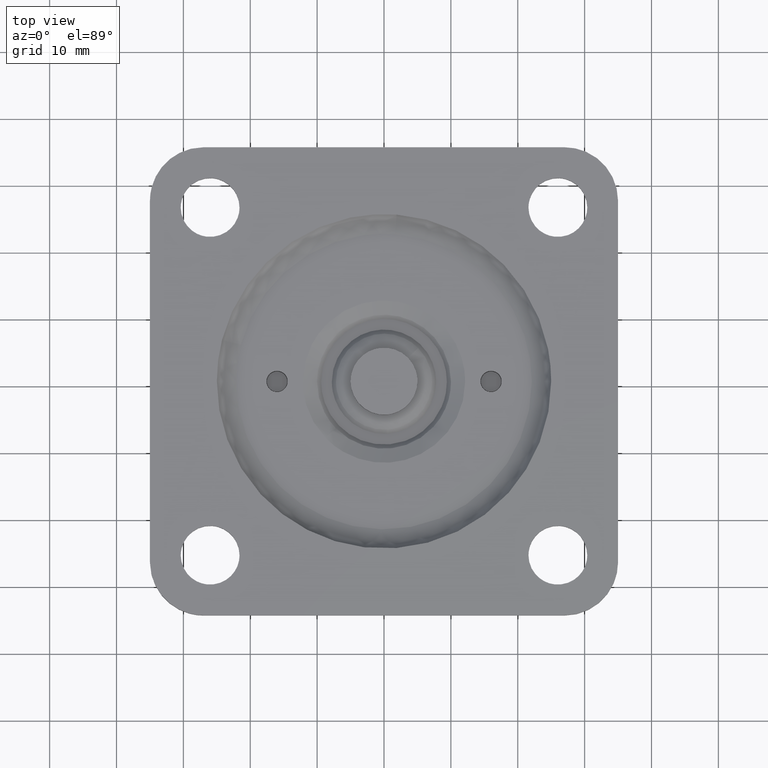
[diagram: clean part render]
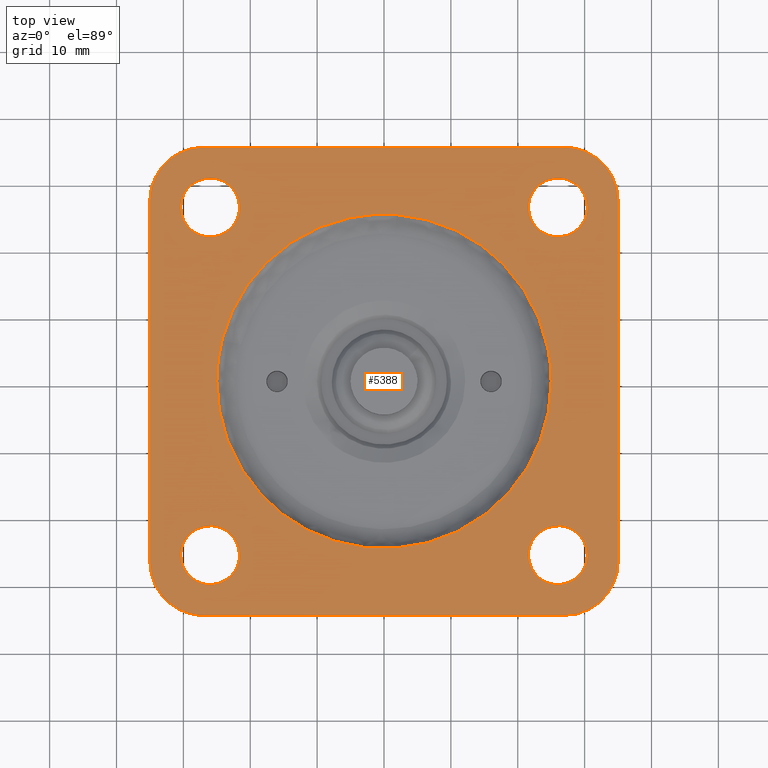
[diagram: same view with one face highlighted and labeled with its STEP entity id]
A machine part, top view. The second image highlights one B-rep face of the part: STEP entity #5388.
In plain terms, the highlighted face is a freeform B-spline surface patch.
Its self-contained STEP definition (entity closure, byte-faithful):
#2862=CARTESIAN_POINT('',(-26.519352632621381,21.630758084015529,30.500000000000000));
#2863=VERTEX_POINT('',#2862);
#2869=CARTESIAN_POINT('',(-21.600001999999900,26.0,30.500000000000000));
#2870=VERTEX_POINT('',#2869);
#2871=CARTESIAN_POINT('',(-26.519352632621377,21.630758084015525,30.500000000000000));
#2872=CARTESIAN_POINT('',(-26.260588126601434,21.599999999999994,30.500000000000000));
#2873=CARTESIAN_POINT('',(-26.000001999999899,21.600000000000001,30.500000000000000));
#2874=CARTESIAN_POINT('',(-21.600001999999900,21.600000000000005,30.499999999999996));
#2875=CARTESIAN_POINT('',(-21.600001999999900,26.0,30.500000000000000));
#2883=(BOUNDED_CURVE()B_SPLINE_CURVE(2,(#2871,#2872,#2873,#2874,#2875),.UNSPECIFIED.,.F.,.U.)B_SPLINE_CURVE_WITH_KNOTS((3,2,3),(0.229562473505453,0.250000000000000,0.500000000000000),.UNSPECIFIED.)CURVE()GEOMETRIC_REPRESENTATION_ITEM()RATIONAL_B_SPLINE_CURVE((0.956026754167910,0.976055948321707,1.0,0.707106781186548,1.0))REPRESENTATION_ITEM(''));
#2884=EDGE_CURVE('',#2863,#2870,#2883,.T.);
#2886=CARTESIAN_POINT('',(-25.731392826638849,30.391793382203549,30.500000000000000));
#2887=VERTEX_POINT('',#2886);
#2888=CARTESIAN_POINT('',(-21.600001999999900,26.0,30.500000000000000));
#2889=CARTESIAN_POINT('',(-21.600001999999900,30.139110849536575,30.500000000000004));
#2890=CARTESIAN_POINT('',(-25.731392826638846,30.391793382203542,30.500000000000000));
#2898=(BOUNDED_CURVE()B_SPLINE_CURVE(2,(#2888,#2889,#2890),.UNSPECIFIED.,.F.,.U.)B_SPLINE_CURVE_WITH_KNOTS((3,3),(0.500000000000000,0.739333135134488),.UNSPECIFIED.)CURVE()GEOMETRIC_REPRESENTATION_ITEM()RATIONAL_B_SPLINE_CURVE((1.0,0.719603790726980,0.976072412215062))REPRESENTATION_ITEM(''));
#2899=EDGE_CURVE('',#2870,#2887,#2898,.T.);
#2973=CARTESIAN_POINT('',(-30.400001999999901,26.0,30.500000000000000));
#2974=VERTEX_POINT('',#2973);
#2975=CARTESIAN_POINT('',(-25.731392826638849,30.391793382203545,30.500000000000004));
#2976=CARTESIAN_POINT('',(-25.865572047951510,30.399999999999991,30.499999999999996));
#2977=CARTESIAN_POINT('',(-26.000001999999899,30.399999999999999,30.500000000000000));
#2978=CARTESIAN_POINT('',(-30.400001999999905,30.400000000000002,30.499999999999996));
#2979=CARTESIAN_POINT('',(-30.400001999999901,26.0,30.500000000000000));
#2987=(BOUNDED_CURVE()B_SPLINE_CURVE(2,(#2975,#2976,#2977,#2978,#2979),.UNSPECIFIED.,.F.,.U.)B_SPLINE_CURVE_WITH_KNOTS((3,2,3),(0.739333135134488,0.750000000000000,1.0),.UNSPECIFIED.)CURVE()GEOMETRIC_REPRESENTATION_ITEM()RATIONAL_B_SPLINE_CURVE((0.976072412215062,0.987502990459568,1.0,0.707106781186548,1.0))REPRESENTATION_ITEM(''));
#2988=EDGE_CURVE('',#2887,#2974,#2987,.T.);
#2990=CARTESIAN_POINT('',(-30.400001999999901,26.0,30.500000000000000));
#2991=CARTESIAN_POINT('',(-30.400001999999898,22.092032086051312,30.499999999999996));
#2992=CARTESIAN_POINT('',(-26.519352632621381,21.630758084015529,30.500000000000004));
#3000=(BOUNDED_CURVE()B_SPLINE_CURVE(2,(#2990,#2991,#2992),.UNSPECIFIED.,.F.,.U.)B_SPLINE_CURVE_WITH_KNOTS((3,3),(0.0,0.229562473505453),.UNSPECIFIED.)CURVE()GEOMETRIC_REPRESENTATION_ITEM()RATIONAL_B_SPLINE_CURVE((1.0,0.731050832864840,0.956026754167910))REPRESENTATION_ITEM(''));
#3001=EDGE_CURVE('',#2974,#2863,#3000,.T.);
#3048=CARTESIAN_POINT('',(25.480647367378520,21.630758084015529,30.500000000000000));
#3049=VERTEX_POINT('',#3048);
#3055=CARTESIAN_POINT('',(30.399998000000000,26.0,30.500000000000000));
#3056=VERTEX_POINT('',#3055);
#3057=CARTESIAN_POINT('',(25.480647367378520,21.630758084015529,30.500000000000004));
#3058=CARTESIAN_POINT('',(25.739411873398456,21.599999999999994,30.500000000000004));
#3059=CARTESIAN_POINT('',(25.999998000000001,21.600000000000001,30.500000000000000));
#3060=CARTESIAN_POINT('',(30.399997999999997,21.600000000000005,30.499999999999996));
#3061=CARTESIAN_POINT('',(30.399998000000000,26.0,30.500000000000000));
#3069=(BOUNDED_CURVE()B_SPLINE_CURVE(2,(#3057,#3058,#3059,#3060,#3061),.UNSPECIFIED.,.F.,.U.)B_SPLINE_CURVE_WITH_KNOTS((3,2,3),(0.229562473505453,0.250000000000000,0.500000000000000),.UNSPECIFIED.)CURVE()GEOMETRIC_REPRESENTATION_ITEM()RATIONAL_B_SPLINE_CURVE((0.956026754167910,0.976055948321707,1.0,0.707106781186548,1.0))REPRESENTATION_ITEM(''));
#3070=EDGE_CURVE('',#3049,#3056,#3069,.T.);
#3072=CARTESIAN_POINT('',(26.268607173361062,30.391793382203549,30.500000000000000));
#3073=VERTEX_POINT('',#3072);
#3074=CARTESIAN_POINT('',(30.399998000000000,26.0,30.500000000000000));
#3075=CARTESIAN_POINT('',(30.399998000000000,30.139110849536575,30.500000000000004));
#3076=CARTESIAN_POINT('',(26.268607173361058,30.391793382203542,30.500000000000000));
#3084=(BOUNDED_CURVE()B_SPLINE_CURVE(2,(#3074,#3075,#3076),.UNSPECIFIED.,.F.,.U.)B_SPLINE_CURVE_WITH_KNOTS((3,3),(0.500000000000000,0.739333135134488),.UNSPECIFIED.)CURVE()GEOMETRIC_REPRESENTATION_ITEM()RATIONAL_B_SPLINE_CURVE((1.0,0.719603790726980,0.976072412215062))REPRESENTATION_ITEM(''));
#3085=EDGE_CURVE('',#3056,#3073,#3084,.T.);
#3159=CARTESIAN_POINT('',(21.599997999999999,26.0,30.500000000000000));
#3160=VERTEX_POINT('',#3159);
#3161=CARTESIAN_POINT('',(26.268607173361058,30.391793382203542,30.500000000000000));
#3162=CARTESIAN_POINT('',(26.134427952048384,30.400000000000006,30.500000000000007));
#3163=CARTESIAN_POINT('',(25.999998000000001,30.399999999999999,30.500000000000000));
#3164=CARTESIAN_POINT('',(21.599997999999992,30.400000000000002,30.499999999999996));
#3165=CARTESIAN_POINT('',(21.599997999999999,26.0,30.500000000000000));
#3173=(BOUNDED_CURVE()B_SPLINE_CURVE(2,(#3161,#3162,#3163,#3164,#3165),.UNSPECIFIED.,.F.,.U.)B_SPLINE_CURVE_WITH_KNOTS((3,2,3),(0.739333135134488,0.750000000000000,1.0),.UNSPECIFIED.)CURVE()GEOMETRIC_REPRESENTATION_ITEM()RATIONAL_B_SPLINE_CURVE((0.976072412215062,0.987502990459568,1.0,0.707106781186548,1.0))REPRESENTATION_ITEM(''));
#3174=EDGE_CURVE('',#3073,#3160,#3173,.T.);
#3176=CARTESIAN_POINT('',(21.599997999999999,26.0,30.500000000000000));
#3177=CARTESIAN_POINT('',(21.599997999999999,22.092032086051308,30.500000000000004));
#3178=CARTESIAN_POINT('',(25.480647367378523,21.630758084015522,30.500000000000004));
#3186=(BOUNDED_CURVE()B_SPLINE_CURVE(2,(#3176,#3177,#3178),.UNSPECIFIED.,.F.,.U.)B_SPLINE_CURVE_WITH_KNOTS((3,3),(0.0,0.229562473505453),.UNSPECIFIED.)CURVE()GEOMETRIC_REPRESENTATION_ITEM()RATIONAL_B_SPLINE_CURVE((1.0,0.731050832864841,0.956026754167910))REPRESENTATION_ITEM(''));
#3187=EDGE_CURVE('',#3160,#3049,#3186,.T.);
#3234=CARTESIAN_POINT('',(25.480647367378520,-30.369241915984471,30.500000000000000));
#3235=VERTEX_POINT('',#3234);
#3241=CARTESIAN_POINT('',(30.399998000000000,-26.0,30.500000000000000));
#3242=VERTEX_POINT('',#3241);
#3243=CARTESIAN_POINT('',(25.480647367378523,-30.369241915984468,30.500000000000000));
#3244=CARTESIAN_POINT('',(25.739411873398460,-30.399999999999995,30.500000000000007));
#3245=CARTESIAN_POINT('',(25.999998000000001,-30.399999999999999,30.500000000000000));
#3246=CARTESIAN_POINT('',(30.399997999999997,-30.400000000000002,30.499999999999996));
#3247=CARTESIAN_POINT('',(30.399998000000000,-26.0,30.500000000000000));
#3255=(BOUNDED_CURVE()B_SPLINE_CURVE(2,(#3243,#3244,#3245,#3246,#3247),.UNSPECIFIED.,.F.,.U.)B_SPLINE_CURVE_WITH_KNOTS((3,2,3),(0.229562473505453,0.250000000000000,0.500000000000000),.UNSPECIFIED.)CURVE()GEOMETRIC_REPRESENTATION_ITEM()RATIONAL_B_SPLINE_CURVE((0.956026754167910,0.976055948321707,1.0,0.707106781186548,1.0))REPRESENTATION_ITEM(''));
#3256=EDGE_CURVE('',#3235,#3242,#3255,.T.);
#3258=CARTESIAN_POINT('',(26.268607173361062,-21.608206617796458,30.500000000000000));
#3259=VERTEX_POINT('',#3258);
#3260=CARTESIAN_POINT('',(30.399998000000000,-26.0,30.500000000000000));
#3261=CARTESIAN_POINT('',(30.399997999999993,-21.860889150463418,30.499999999999996));
#3262=CARTESIAN_POINT('',(26.268607173361058,-21.608206617796458,30.499999999999996));
#3270=(BOUNDED_CURVE()B_SPLINE_CURVE(2,(#3260,#3261,#3262),.UNSPECIFIED.,.F.,.U.)B_SPLINE_CURVE_WITH_KNOTS((3,3),(0.500000000000000,0.739333135134488),.UNSPECIFIED.)CURVE()GEOMETRIC_REPRESENTATION_ITEM()RATIONAL_B_SPLINE_CURVE((1.0,0.719603790726980,0.976072412215062))REPRESENTATION_ITEM(''));
#3271=EDGE_CURVE('',#3242,#3259,#3270,.T.);
#3345=CARTESIAN_POINT('',(21.599997999999999,-26.0,30.500000000000000));
#3346=VERTEX_POINT('',#3345);
#3347=CARTESIAN_POINT('',(26.268607173361058,-21.608206617796458,30.499999999999996));
#3348=CARTESIAN_POINT('',(26.134427952048387,-21.599999999999998,30.500000000000004));
#3349=CARTESIAN_POINT('',(25.999998000000001,-21.600000000000001,30.500000000000000));
#3350=CARTESIAN_POINT('',(21.599997999999992,-21.600000000000005,30.499999999999996));
#3351=CARTESIAN_POINT('',(21.599997999999999,-26.0,30.500000000000000));
#3359=(BOUNDED_CURVE()B_SPLINE_CURVE(2,(#3347,#3348,#3349,#3350,#3351),.UNSPECIFIED.,.F.,.U.)B_SPLINE_CURVE_WITH_KNOTS((3,2,3),(0.739333135134488,0.750000000000000,1.0),.UNSPECIFIED.)CURVE()GEOMETRIC_REPRESENTATION_ITEM()RATIONAL_B_SPLINE_CURVE((0.976072412215062,0.987502990459568,1.0,0.707106781186548,1.0))REPRESENTATION_ITEM(''));
#3360=EDGE_CURVE('',#3259,#3346,#3359,.T.);
#3362=CARTESIAN_POINT('',(21.599997999999999,-26.0,30.500000000000000));
#3363=CARTESIAN_POINT('',(21.599997999999999,-29.907967913948696,30.500000000000004));
#3364=CARTESIAN_POINT('',(25.480647367378523,-30.369241915984471,30.500000000000004));
#3372=(BOUNDED_CURVE()B_SPLINE_CURVE(2,(#3362,#3363,#3364),.UNSPECIFIED.,.F.,.U.)B_SPLINE_CURVE_WITH_KNOTS((3,3),(0.0,0.229562473505453),.UNSPECIFIED.)CURVE()GEOMETRIC_REPRESENTATION_ITEM()RATIONAL_B_SPLINE_CURVE((1.0,0.731050832864841,0.956026754167910))REPRESENTATION_ITEM(''));
#3373=EDGE_CURVE('',#3346,#3235,#3372,.T.);
#3420=CARTESIAN_POINT('',(-26.519352632621381,-30.369241915984471,30.500000000000000));
#3421=VERTEX_POINT('',#3420);
#3427=CARTESIAN_POINT('',(-21.600001999999900,-26.0,30.500000000000000));
#3428=VERTEX_POINT('',#3427);
#3429=CARTESIAN_POINT('',(-26.519352632621377,-30.369241915984475,30.500000000000000));
#3430=CARTESIAN_POINT('',(-26.260588126601434,-30.399999999999999,30.500000000000000));
#3431=CARTESIAN_POINT('',(-26.000001999999899,-30.399999999999999,30.500000000000000));
#3432=CARTESIAN_POINT('',(-21.600001999999900,-30.400000000000002,30.499999999999996));
#3433=CARTESIAN_POINT('',(-21.600001999999900,-26.0,30.500000000000000));
#3441=(BOUNDED_CURVE()B_SPLINE_CURVE(2,(#3429,#3430,#3431,#3432,#3433),.UNSPECIFIED.,.F.,.U.)B_SPLINE_CURVE_WITH_KNOTS((3,2,3),(0.229562473505453,0.250000000000000,0.500000000000000),.UNSPECIFIED.)CURVE()GEOMETRIC_REPRESENTATION_ITEM()RATIONAL_B_SPLINE_CURVE((0.956026754167910,0.976055948321707,1.0,0.707106781186548,1.0))REPRESENTATION_ITEM(''));
#3442=EDGE_CURVE('',#3421,#3428,#3441,.T.);
#3444=CARTESIAN_POINT('',(-25.731392826638849,-21.608206617796458,30.500000000000000));
#3445=VERTEX_POINT('',#3444);
#3446=CARTESIAN_POINT('',(-21.600001999999900,-26.0,30.500000000000000));
#3447=CARTESIAN_POINT('',(-21.600001999999900,-21.860889150463422,30.500000000000004));
#3448=CARTESIAN_POINT('',(-25.731392826638846,-21.608206617796455,30.500000000000000));
#3456=(BOUNDED_CURVE()B_SPLINE_CURVE(2,(#3446,#3447,#3448),.UNSPECIFIED.,.F.,.U.)B_SPLINE_CURVE_WITH_KNOTS((3,3),(0.500000000000000,0.739333135134488),.UNSPECIFIED.)CURVE()GEOMETRIC_REPRESENTATION_ITEM()RATIONAL_B_SPLINE_CURVE((1.0,0.719603790726980,0.976072412215062))REPRESENTATION_ITEM(''));
#3457=EDGE_CURVE('',#3428,#3445,#3456,.T.);
#3531=CARTESIAN_POINT('',(-30.400001999999901,-26.0,30.500000000000000));
#3532=VERTEX_POINT('',#3531);
#3533=CARTESIAN_POINT('',(-25.731392826638849,-21.608206617796455,30.500000000000004));
#3534=CARTESIAN_POINT('',(-25.865572047951510,-21.599999999999998,30.499999999999996));
#3535=CARTESIAN_POINT('',(-26.000001999999899,-21.600000000000001,30.500000000000000));
#3536=CARTESIAN_POINT('',(-30.400001999999905,-21.600000000000005,30.499999999999996));
#3537=CARTESIAN_POINT('',(-30.400001999999901,-26.0,30.500000000000000));
#3545=(BOUNDED_CURVE()B_SPLINE_CURVE(2,(#3533,#3534,#3535,#3536,#3537),.UNSPECIFIED.,.F.,.U.)B_SPLINE_CURVE_WITH_KNOTS((3,2,3),(0.739333135134488,0.750000000000000,1.0),.UNSPECIFIED.)CURVE()GEOMETRIC_REPRESENTATION_ITEM()RATIONAL_B_SPLINE_CURVE((0.976072412215062,0.987502990459568,1.0,0.707106781186548,1.0))REPRESENTATION_ITEM(''));
#3546=EDGE_CURVE('',#3445,#3532,#3545,.T.);
#3548=CARTESIAN_POINT('',(-30.400001999999901,-26.0,30.500000000000000));
#3549=CARTESIAN_POINT('',(-30.400001999999898,-29.907967913948685,30.499999999999996));
#3550=CARTESIAN_POINT('',(-26.519352632621381,-30.369241915984464,30.500000000000004));
#3558=(BOUNDED_CURVE()B_SPLINE_CURVE(2,(#3548,#3549,#3550),.UNSPECIFIED.,.F.,.U.)B_SPLINE_CURVE_WITH_KNOTS((3,3),(0.0,0.229562473505453),.UNSPECIFIED.)CURVE()GEOMETRIC_REPRESENTATION_ITEM()RATIONAL_B_SPLINE_CURVE((1.0,0.731050832864840,0.956026754167910))REPRESENTATION_ITEM(''));
#3559=EDGE_CURVE('',#3532,#3421,#3558,.T.);
#4524=CARTESIAN_POINT('',(1.895458918883613,24.928041608480431,30.499999999949559));
#4525=VERTEX_POINT('',#4524);
#4526=CARTESIAN_POINT('',(25.000000458960098,0.0,30.500000000000000));
#4527=VERTEX_POINT('',#4526);
#4528=CARTESIAN_POINT('',(1.895458918883612,24.928041608480427,30.499999999949555));
#4529=CARTESIAN_POINT('',(25.000000458960095,23.171236560717542,30.499999999999996));
#4530=CARTESIAN_POINT('',(25.000000458960098,0.0,30.500000000000000));
#4538=(BOUNDED_CURVE()B_SPLINE_CURVE(2,(#4528,#4529,#4530),.UNSPECIFIED.,.F.,.U.)B_SPLINE_CURVE_WITH_KNOTS((3,3),(0.263214436585522,0.500000000000000),.UNSPECIFIED.)CURVE()GEOMETRIC_REPRESENTATION_ITEM()RATIONAL_B_SPLINE_CURVE((0.970673302018678,0.722588456651907,1.0))REPRESENTATION_ITEM(''));
#4539=EDGE_CURVE('',#4525,#4527,#4538,.T.);
#4603=CARTESIAN_POINT('',(-24.214585367299890,6.217229701237718,30.500004822869631));
#4604=VERTEX_POINT('',#4603);
#4618=CARTESIAN_POINT('',(-25.000000458960098,0.0,30.500000000000000));
#4619=VERTEX_POINT('',#4618);
#4620=CARTESIAN_POINT('',(-25.000000458960098,0.0,30.500000000000000));
#4621=CARTESIAN_POINT('',(-25.000001105200823,3.158225284771066,30.500002411434817));
#4622=CARTESIAN_POINT('',(-24.214585367299883,6.217229701237718,30.500004822869638));
#4630=(BOUNDED_CURVE()B_SPLINE_CURVE(2,(#4620,#4621,#4622),.UNSPECIFIED.,.F.,.U.)B_SPLINE_CURVE_WITH_KNOTS((3,3),(0.0,0.042443118195301),.UNSPECIFIED.)CURVE()GEOMETRIC_REPRESENTATION_ITEM()RATIONAL_B_SPLINE_CURVE((1.0,0.950274793981195,0.917433530333124))REPRESENTATION_ITEM(''));
#4631=EDGE_CURVE('',#4619,#4604,#4630,.T.);
#4633=CARTESIAN_POINT('',(25.000000458960098,0.0,30.500000000000000));
#4634=CARTESIAN_POINT('',(25.000000458960102,-25.000000458960102,30.499999999999996));
#4635=CARTESIAN_POINT('',(0.0,-25.000000458960098,30.500000000000000));
#4636=CARTESIAN_POINT('',(-25.000000458960102,-25.000000458960102,30.499999999999996));
#4637=CARTESIAN_POINT('',(-25.000000458960098,0.0,30.500000000000000));
#4645=(BOUNDED_CURVE()B_SPLINE_CURVE(2,(#4633,#4634,#4635,#4636,#4637),.UNSPECIFIED.,.F.,.U.)B_SPLINE_CURVE_WITH_KNOTS((3,2,3),(0.500000000000000,0.750000000000000,1.0),.UNSPECIFIED.)CURVE()GEOMETRIC_REPRESENTATION_ITEM()RATIONAL_B_SPLINE_CURVE((1.0,0.707106781186548,1.0,0.707106781186548,1.0))REPRESENTATION_ITEM(''));
#4646=EDGE_CURVE('',#4527,#4619,#4645,.T.);
#4674=CARTESIAN_POINT('',(-24.214585367299883,6.217229701237718,30.500004822869638));
#4675=CARTESIAN_POINT('',(-19.392003646520973,25.000000637279847,30.500002591624700));
#4676=CARTESIAN_POINT('',(-0.000000060311676,25.000000474431051,30.500000224982202));
#4677=CARTESIAN_POINT('',(0.949095346393135,25.000000466460811,30.500000109152527));
#4678=CARTESIAN_POINT('',(1.895458918883613,24.928041608480424,30.499999999949562));
#4686=(BOUNDED_CURVE()B_SPLINE_CURVE(2,(#4674,#4675,#4676,#4677,#4678),.UNSPECIFIED.,.F.,.U.)B_SPLINE_CURVE_WITH_KNOTS((3,2,3),(0.042443118195301,0.250000000000000,0.263214436585522),.UNSPECIFIED.)CURVE()GEOMETRIC_REPRESENTATION_ITEM()RATIONAL_B_SPLINE_CURVE((0.917433530333124,0.756831987205353,1.0,0.984518324534641,0.970673302018678))REPRESENTATION_ITEM(''));
#4687=EDGE_CURVE('',#4604,#4525,#4686,.T.);
#4998=CARTESIAN_POINT('',(26.999997860373700,34.999996000000152,30.500000000000000));
#4999=VERTEX_POINT('',#4998);
#5005=CARTESIAN_POINT('',(34.999997999999998,26.999996000000149,30.500000000000000));
#5006=VERTEX_POINT('',#5005);
#5007=CARTESIAN_POINT('',(34.999998000000012,26.999996000000149,30.500000000000000));
#5008=CARTESIAN_POINT('',(34.999998000000005,30.313704539880504,30.499999999999996));
#5009=CARTESIAN_POINT('',(32.656852200127027,32.656850298857883,30.500000000000000));
#5010=CARTESIAN_POINT('',(30.313706400254052,34.999996057835254,30.499999999999996));
#5011=CARTESIAN_POINT('',(26.999997860373700,34.999996000000152,30.500000000000000));
#5019=(BOUNDED_CURVE()B_SPLINE_CURVE(2,(#5007,#5008,#5009,#5010,#5011),.UNSPECIFIED.,.F.,.U.)B_SPLINE_CURVE_WITH_KNOTS((3,2,3),(0.0,0.500000000000000,1.0),.UNSPECIFIED.)CURVE()GEOMETRIC_REPRESENTATION_ITEM()RATIONAL_B_SPLINE_CURVE((1.0,0.923879530841516,1.0,0.923879530841516,1.0))REPRESENTATION_ITEM(''));
#5020=EDGE_CURVE('',#5006,#4999,#5019,.T.);
#5043=CARTESIAN_POINT('',(34.999997999999998,-26.999999860373698,30.500000000000000));
#5044=VERTEX_POINT('',#5043);
#5045=CARTESIAN_POINT('',(34.999997999999998,-26.999999860373698,30.500000000000000));
#5046=CARTESIAN_POINT('',(34.999997999999998,26.999996000000149,30.500000000000000));
#5047=QUASI_UNIFORM_CURVE('',1,(#5045,#5046),.UNSPECIFIED.,.F.,.U.);
#5048=EDGE_CURVE('',#5044,#5006,#5047,.T.);
#5090=CARTESIAN_POINT('',(26.999998000000001,-35.0,30.500000000000000));
#5091=VERTEX_POINT('',#5090);
#5092=CARTESIAN_POINT('',(26.999998000000001,-35.0,30.500000000000000));
#5093=CARTESIAN_POINT('',(30.313706539880357,-35.0,30.500000000000004));
#5094=CARTESIAN_POINT('',(32.656852298857729,-32.656854200127029,30.500000000000000));
#5095=CARTESIAN_POINT('',(34.999998057835100,-30.313708400254058,30.500000000000004));
#5096=CARTESIAN_POINT('',(34.999997999999998,-26.999999860373698,30.500000000000000));
#5104=(BOUNDED_CURVE()B_SPLINE_CURVE(2,(#5092,#5093,#5094,#5095,#5096),.UNSPECIFIED.,.F.,.U.)B_SPLINE_CURVE_WITH_KNOTS((3,2,3),(0.0,0.500000000000000,1.0),.UNSPECIFIED.)CURVE()GEOMETRIC_REPRESENTATION_ITEM()RATIONAL_B_SPLINE_CURVE((1.0,0.923879530841516,1.0,0.923879530841516,1.0))REPRESENTATION_ITEM(''));
#5105=EDGE_CURVE('',#5091,#5044,#5104,.T.);
#5128=CARTESIAN_POINT('',(-27.000003256636901,-35.0,30.500000000000000));
#5129=VERTEX_POINT('',#5128);
#5130=CARTESIAN_POINT('',(-27.000003256636901,-35.0,30.500000000000000));
#5131=CARTESIAN_POINT('',(26.999998000000001,-35.0,30.500000000000000));
#5132=QUASI_UNIFORM_CURVE('',1,(#5130,#5131),.UNSPECIFIED.,.F.,.U.);
#5133=EDGE_CURVE('',#5129,#5091,#5132,.T.);
#5173=CARTESIAN_POINT('',(-35.000002000000002,-27.0,30.500000000000000));
#5174=VERTEX_POINT('',#5173);
#5175=CARTESIAN_POINT('',(-35.000001999999903,-27.0,30.500000000000000));
#5176=CARTESIAN_POINT('',(-35.000001999999910,-34.999998743363101,30.500000000000007));
#5177=CARTESIAN_POINT('',(-27.000003256636901,-34.999999999999901,30.500000000000000));
#5185=(BOUNDED_CURVE()B_SPLINE_CURVE(2,(#5175,#5176,#5177),.UNSPECIFIED.,.F.,.U.)CURVE()GEOMETRIC_REPRESENTATION_ITEM()QUASI_UNIFORM_CURVE()RATIONAL_B_SPLINE_CURVE((1.0,0.707106836722579,1.0))REPRESENTATION_ITEM(''));
#5186=EDGE_CURVE('',#5174,#5129,#5185,.T.);
#5209=CARTESIAN_POINT('',(-35.000001999999903,26.999995581121102,30.500000000000000));
#5210=VERTEX_POINT('',#5209);
#5211=CARTESIAN_POINT('',(-35.000001999999903,26.999995581121102,30.500000000000000));
#5212=CARTESIAN_POINT('',(-35.000002000000002,-27.0,30.500000000000000));
#5213=QUASI_UNIFORM_CURVE('',1,(#5211,#5212),.UNSPECIFIED.,.F.,.U.);
#5214=EDGE_CURVE('',#5210,#5174,#5213,.T.);
#5254=CARTESIAN_POINT('',(-27.000002558505152,34.999996000000102,30.500000000000000));
#5255=VERTEX_POINT('',#5254);
#5256=CARTESIAN_POINT('',(-27.000002558505152,34.999996000000131,30.500000000000000));
#5257=CARTESIAN_POINT('',(-35.000002418878935,34.999995441494882,30.500000000000011));
#5258=CARTESIAN_POINT('',(-35.000001999999888,26.999995581121102,30.500000000000000));
#5266=(BOUNDED_CURVE()B_SPLINE_CURVE(2,(#5256,#5257,#5258),.UNSPECIFIED.,.F.,.U.)CURVE()GEOMETRIC_REPRESENTATION_ITEM()QUASI_UNIFORM_CURVE()RATIONAL_B_SPLINE_CURVE((1.0,0.707106787357212,1.0))REPRESENTATION_ITEM(''));
#5267=EDGE_CURVE('',#5255,#5210,#5266,.T.);
#5288=CARTESIAN_POINT('',(26.999997860373700,34.999996000000152,30.500000000000000));
#5289=CARTESIAN_POINT('',(-27.000002558505152,34.999996000000102,30.500000000000000));
#5290=QUASI_UNIFORM_CURVE('',1,(#5288,#5289),.UNSPECIFIED.,.F.,.U.);
#5291=EDGE_CURVE('',#4999,#5255,#5290,.T.);
#5343=CARTESIAN_POINT('',(-38.496503585566998,38.496496321636457,30.500000000000000));
#5344=CARTESIAN_POINT('',(38.496494578776840,38.496496321636457,30.500000000000000));
#5345=CARTESIAN_POINT('',(-38.496503585566998,-38.496501573333788,30.500000000000000));
#5346=CARTESIAN_POINT('',(38.496494578776840,-38.496501573333788,30.500000000000000));
#5347=B_SPLINE_SURFACE_WITH_KNOTS('',1,1,((#5343,#5345),(#5344,#5346)),.UNSPECIFIED.,.F.,.F.,.U.,(2,2),(2,2),(0.0,76.992998164343845),(0.0,76.992997894970244),.UNSPECIFIED.);
#5348=ORIENTED_EDGE('',*,*,#5291,.T.);
#5349=ORIENTED_EDGE('',*,*,#5267,.T.);
#5350=ORIENTED_EDGE('',*,*,#5214,.T.);
#5351=ORIENTED_EDGE('',*,*,#5186,.T.);
#5352=ORIENTED_EDGE('',*,*,#5133,.T.);
#5353=ORIENTED_EDGE('',*,*,#5105,.T.);
#5354=ORIENTED_EDGE('',*,*,#5048,.T.);
#5355=ORIENTED_EDGE('',*,*,#5020,.T.);
#5356=EDGE_LOOP('',(#5348,#5349,#5350,#5351,#5352,#5353,#5354,#5355));
#5357=FACE_OUTER_BOUND('',#5356,.T.);
#5358=ORIENTED_EDGE('',*,*,#4646,.T.);
#5359=ORIENTED_EDGE('',*,*,#4631,.T.);
#5360=ORIENTED_EDGE('',*,*,#4687,.T.);
#5361=ORIENTED_EDGE('',*,*,#4539,.T.);
#5362=EDGE_LOOP('',(#5358,#5359,#5360,#5361));
#5363=FACE_BOUND('',#5362,.T.);
#5364=ORIENTED_EDGE('',*,*,#3457,.F.);
#5365=ORIENTED_EDGE('',*,*,#3442,.F.);
#5366=ORIENTED_EDGE('',*,*,#3559,.F.);
#5367=ORIENTED_EDGE('',*,*,#3546,.F.);
#5368=EDGE_LOOP('',(#5364,#5365,#5366,#5367));
#5369=FACE_BOUND('',#5368,.T.);
#5370=ORIENTED_EDGE('',*,*,#3271,.F.);
#5371=ORIENTED_EDGE('',*,*,#3256,.F.);
#5372=ORIENTED_EDGE('',*,*,#3373,.F.);
#5373=ORIENTED_EDGE('',*,*,#3360,.F.);
#5374=EDGE_LOOP('',(#5370,#5371,#5372,#5373));
#5375=FACE_BOUND('',#5374,.T.);
#5376=ORIENTED_EDGE('',*,*,#3085,.F.);
#5377=ORIENTED_EDGE('',*,*,#3070,.F.);
#5378=ORIENTED_EDGE('',*,*,#3187,.F.);
#5379=ORIENTED_EDGE('',*,*,#3174,.F.);
#5380=EDGE_LOOP('',(#5376,#5377,#5378,#5379));
#5381=FACE_BOUND('',#5380,.T.);
#5382=ORIENTED_EDGE('',*,*,#2899,.F.);
#5383=ORIENTED_EDGE('',*,*,#2884,.F.);
#5384=ORIENTED_EDGE('',*,*,#3001,.F.);
#5385=ORIENTED_EDGE('',*,*,#2988,.F.);
#5386=EDGE_LOOP('',(#5382,#5383,#5384,#5385));
#5387=FACE_BOUND('',#5386,.T.);
#5388=ADVANCED_FACE('',(#5357,#5363,#5369,#5375,#5381,#5387),#5347,.F.);